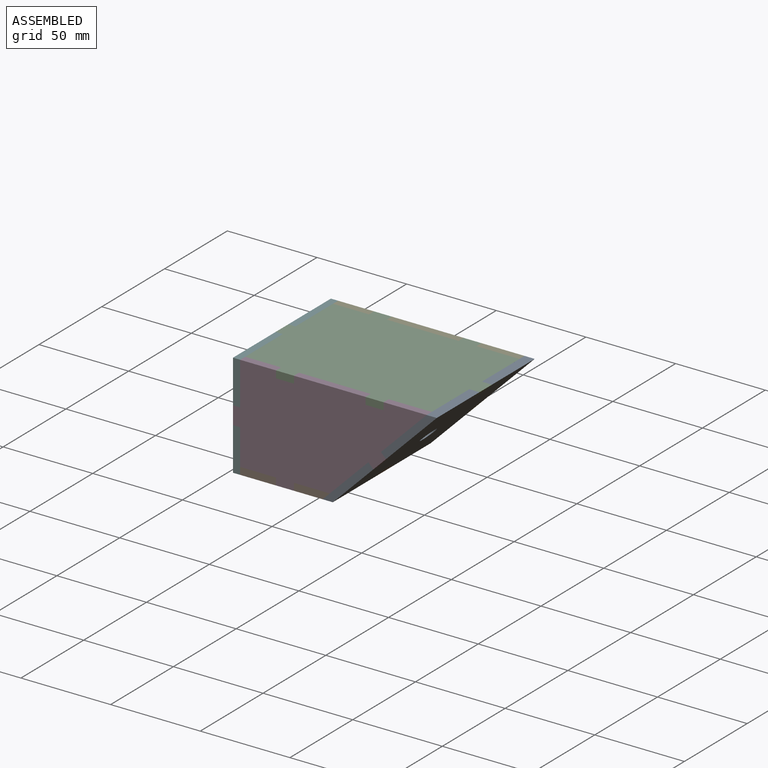
[diagram: assembled view]
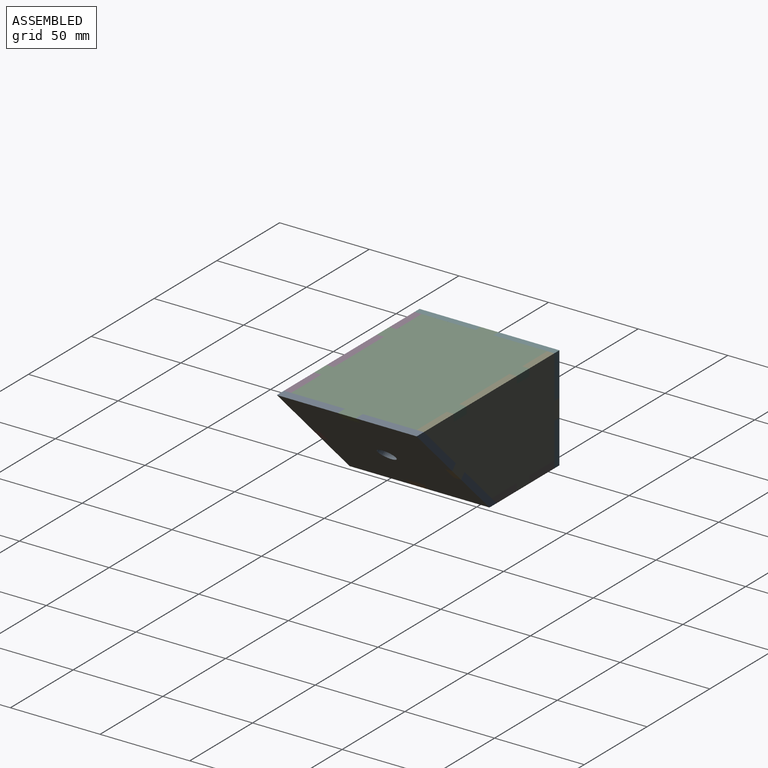
[diagram: assembled view, second angle]
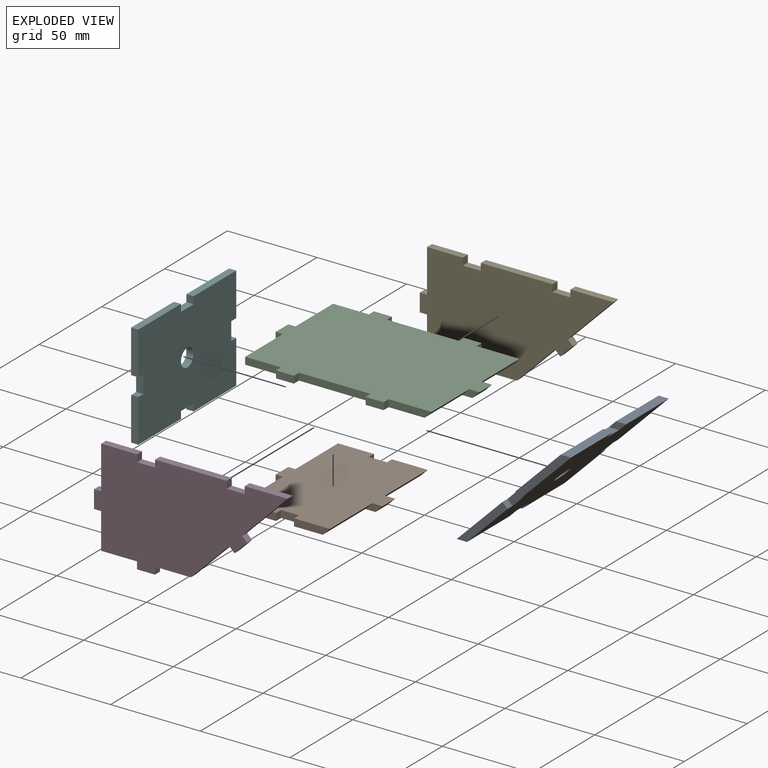
[diagram: exploded view]
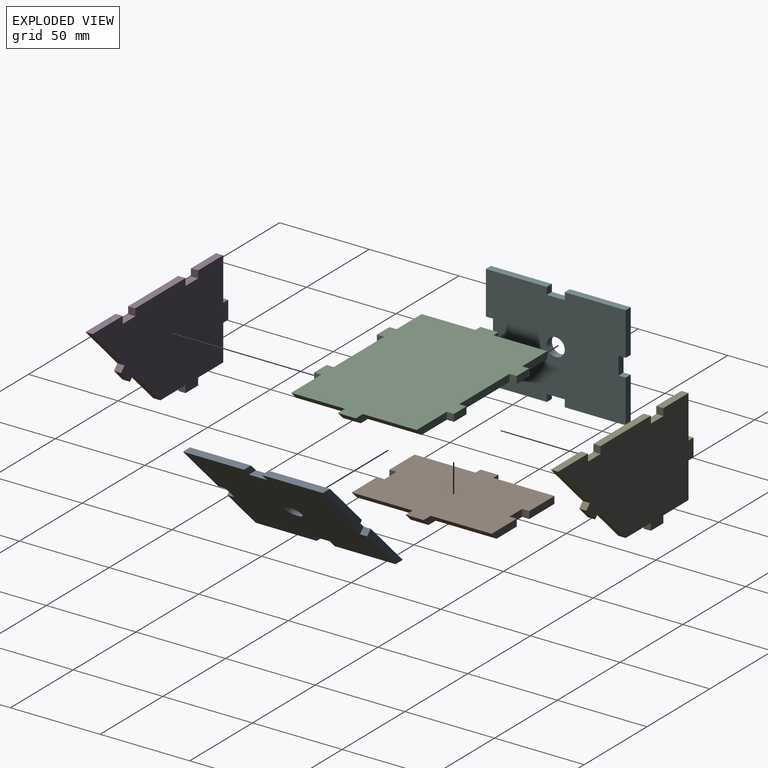
[diagram: exploded view, second angle]
ASSEMBLY  parts=6 mates=5
PART A: 23 faces, bbox 78x4x86 mm
  f0: plane 9.66x4mm, normal (-1,0,0), area 22.6mm2, adj f14,f15,f16,f17
  f1: plane 9.66x4mm, normal (1,0,0), area 22.6mm2, adj f14,f15,f17,f18
  f2: plane 36.01x4mm, normal (-1,0,0), area 136mm2, adj f3,f14,f15,f18
  f3: plane 4x4mm, normal (0,0,-1), area 16mm2, adj f2,f4,f14,f15
  f4: plane 10x4mm, normal (-1,0,0), area 40mm2, adj f3,f5,f14,f15
  f5: plane 4x4mm, normal (0,0,1), area 16mm2, adj f4,f6,f14,f15
  f6: plane 40.01x4mm, normal (-1,0,0), area 152mm2, adj f5,f14,f15,f21
  f7: plane 9.66x4mm, normal (1,0,0), area 22.6mm2, adj f14,f15,f20,f21
  f8: plane 9.66x4mm, normal (-1,0,0), area 22.6mm2, adj f14,f15,f19,f20
  f9: plane 40.01x4mm, normal (1,0,0), area 152mm2, adj f10,f14,f15,f19
  f10: plane 4x4mm, normal (0,0,1), area 16mm2, adj f9,f11,f14,f15
  f11: plane 10x4mm, normal (1,0,0), area 40mm2, adj f10,f12,f14,f15
  f12: plane 4x4mm, normal (0,0,-1), area 16mm2, adj f11,f13,f14,f15
  f13: plane 36.01x4mm, normal (1,0,0), area 136mm2, adj f12,f14,f15,f16
  f14: plane 82.02x78mm, normal (0,-1,0), area 6126.2mm2, adj f0,f1,f2,f3,f4,f5,f6,f7
  f15: plane 82.02x78mm, normal (0,1,0), area 6126.2mm2, adj f0,f1,f2,f3,f4,f5,f6,f7
  f16: plane 34x4mm, normal (0,-0.71,0.71), area 192.3mm2, adj f0,f13,f14,f15
  f17: plane 10x4mm, normal (0,-0.71,0.71), area 56.6mm2, adj f0,f1,f14,f15
  f18: plane 34x4mm, normal (0,-0.71,0.71), area 192.3mm2, adj f1,f2,f14,f15
  f19: plane 34x4mm, normal (0,0.71,-0.71), area 192.3mm2, adj f8,f9,f14,f15
  f20: plane 10x4mm, normal (0,0.71,-0.71), area 56.6mm2, adj f7,f8,f14,f15
  f21: plane 34x4mm, normal (0,0.71,-0.71), area 192.3mm2, adj f6,f7,f14,f15
  f22: cylinder r=5mm len=10mm, axis (0,1,0), area 125.7mm2, adj f14,f15
PART B: 22 faces, bbox 59.7x4x78 mm
  f0: plane 4x4mm, normal (0,0,-1), area 16mm2, adj f1,f16,f17,f18
  f1: plane 34x4mm, normal (-1,0,0), area 136mm2, adj f0,f2,f17,f18
  f2: plane 20x4mm, normal (0,0,-1), area 80mm2, adj f1,f3,f17,f18
  f3: plane 4x4mm, normal (1,0,0), area 16mm2, adj f2,f4,f17,f18
  f4: plane 10x4mm, normal (0,0,-1), area 40mm2, adj f3,f5,f17,f18
  f5: plane 4x4mm, normal (-1,0,0), area 16mm2, adj f4,f6,f17,f18
  f6: plane 20x4mm, normal (0,0,-1), area 72mm2, adj f5,f17,f18,f21
  f7: plane 9.66x4mm, normal (0,0,-1), area 22.6mm2, adj f17,f18,f19,f21
  f8: plane 9.66x4mm, normal (0,0,1), area 22.6mm2, adj f17,f18,f19,f20
  f9: plane 20x4mm, normal (0,0,1), area 72mm2, adj f10,f17,f18,f20
  f10: plane 4x4mm, normal (-1,0,0), area 16mm2, adj f9,f11,f17,f18
  f11: plane 10x4mm, normal (0,0,1), area 40mm2, adj f10,f12,f17,f18
  f12: plane 4x4mm, normal (1,0,0), area 16mm2, adj f11,f13,f17,f18
  f13: plane 20x4mm, normal (0,0,1), area 80mm2, adj f12,f14,f17,f18
  f14: plane 34x4mm, normal (-1,0,0), area 136mm2, adj f13,f15,f17,f18
  f15: plane 4x4mm, normal (0,0,1), area 16mm2, adj f14,f16,f17,f18
  f16: plane 10x4mm, normal (-1,0,0), area 40mm2, adj f0,f15,f17,f18
  f17: plane 78x59.66mm, normal (0,-1,0), area 3916.6mm2, adj f0,f1,f2,f3,f4,f5,f6,f7
  f18: plane 78x55.66mm, normal (0,1,0), area 3604.6mm2, adj f0,f1,f2,f3,f4,f5,f6,f7
  f19: plane 10x4mm, normal (0.71,0.71,0), area 56.6mm2, adj f7,f8,f17,f18
  f20: plane 34x4mm, normal (0.71,0.71,0), area 192.3mm2, adj f8,f9,f17,f18
  f21: plane 34x4mm, normal (0.71,0.71,0), area 192.3mm2, adj f6,f7,f17,f18
PART C: 30 faces, bbox 113.7x78x4 mm
  f0: plane 20x4mm, normal (0,1,0), area 80mm2, adj f1,f24,f25,f26
  f1: plane 30x4mm, normal (-1,0,0), area 120mm2, adj f0,f2,f25,f26
  f2: plane 4x4mm, normal (0,1,0), area 16mm2, adj f1,f3,f25,f26
  f3: plane 10x4mm, normal (-1,0,0), area 40mm2, adj f2,f4,f25,f26
  f4: plane 4x4mm, normal (0,-1,0), area 16mm2, adj f3,f5,f25,f26
  f5: plane 30x4mm, normal (-1,0,0), area 120mm2, adj f4,f6,f25,f26
  f6: plane 20x4mm, normal (0,-1,0), area 80mm2, adj f5,f7,f25,f26
  f7: plane 4x4mm, normal (-1,0,0), area 16mm2, adj f6,f8,f25,f26
  f8: plane 10x4mm, normal (0,-1,0), area 40mm2, adj f7,f9,f25,f26
  f9: plane 4x4mm, normal (1,0,0), area 16mm2, adj f8,f10,f25,f26
  f10: plane 40x4mm, normal (0,-1,0), area 160mm2, adj f9,f11,f25,f26
  f11: plane 4x4mm, normal (-1,0,0), area 16mm2, adj f10,f12,f25,f26
  f12: plane 10x4mm, normal (0,-1,0), area 40mm2, adj f11,f13,f25,f26
  f13: plane 4x4mm, normal (1,0,0), area 16mm2, adj f12,f14,f25,f26
  f14: plane 24x4mm, normal (0,-1,0), area 88mm2, adj f13,f25,f26,f28
  f15: plane 9.66x4mm, normal (0,-1,0), area 22.6mm2, adj f25,f26,f27,f28
  f16: plane 9.66x4mm, normal (0,1,0), area 22.6mm2, adj f25,f26,f27,f29
  f17: plane 24x4mm, normal (0,1,0), area 88mm2, adj f18,f25,f26,f29
  f18: plane 4x4mm, normal (1,0,0), area 16mm2, adj f17,f19,f25,f26
  f19: plane 10x4mm, normal (0,1,0), area 40mm2, adj f18,f20,f25,f26
  f20: plane 4x4mm, normal (-1,0,0), area 16mm2, adj f19,f21,f25,f26
  f21: plane 40x4mm, normal (0,1,0), area 160mm2, adj f20,f22,f25,f26
  f22: plane 4x4mm, normal (1,0,0), area 16mm2, adj f21,f23,f25,f26
  f23: plane 10x4mm, normal (0,1,0), area 40mm2, adj f22,f24,f25,f26
  f24: plane 4x4mm, normal (-1,0,0), area 16mm2, adj f0,f23,f25,f26
  f25: plane 113.66x78mm, normal (0,0,1), area 7536.6mm2, adj f0,f1,f2,f3,f4,f5,f6,f7
  f26: plane 109.66x78mm, normal (0,0,-1), area 7256.6mm2, adj f0,f1,f2,f3,f4,f5,f6,f7
  f27: plane 10x4mm, normal (0.71,0,-0.71), area 56.6mm2, adj f15,f16,f25,f26
  f28: plane 30x4mm, normal (0.71,0,-0.71), area 169.7mm2, adj f14,f15,f25,f26
  f29: plane 30x4mm, normal (0.71,0,-0.71), area 169.7mm2, adj f16,f17,f25,f26
PART D: 26 faces, bbox 108x4x58 mm
  f0: plane 7.07x7.07mm, normal (0.71,0,-0.71), area 40mm2, adj f1,f23,f24,f25
  f1: plane 4x2.83mm, normal (0.71,0,0.71), area 16mm2, adj f0,f2,f24,f25
  f2: plane 25.46x25.46mm, normal (0.71,0,-0.71), area 144mm2, adj f1,f3,f24,f25
  f3: plane 24x4mm, normal (0,0,1), area 96mm2, adj f2,f4,f24,f25
  f4: plane 4x4mm, normal (-1,0,0), area 16mm2, adj f3,f5,f24,f25
  f5: plane 10x4mm, normal (0,0,1), area 40mm2, adj f4,f6,f24,f25
  f6: plane 4x4mm, normal (1,0,0), area 16mm2, adj f5,f7,f24,f25
  f7: plane 40x4mm, normal (0,0,1), area 160mm2, adj f6,f8,f24,f25
  f8: plane 4x4mm, normal (-1,0,0), area 16mm2, adj f7,f9,f24,f25
  f9: plane 10x4mm, normal (0,0,1), area 40mm2, adj f8,f10,f24,f25
  f10: plane 4x4mm, normal (1,0,0), area 16mm2, adj f9,f11,f24,f25
  f11: plane 20x4mm, normal (0,0,1), area 80mm2, adj f10,f12,f24,f25
  f12: plane 24x4mm, normal (-1,0,0), area 96mm2, adj f11,f13,f24,f25
  f13: plane 4x4mm, normal (0,0,1), area 16mm2, adj f12,f14,f24,f25
  f14: plane 10x4mm, normal (-1,0,0), area 40mm2, adj f13,f15,f24,f25
  f15: plane 4x4mm, normal (0,0,-1), area 16mm2, adj f14,f16,f24,f25
  f16: plane 20x4mm, normal (-1,0,0), area 80mm2, adj f15,f17,f24,f25
  f17: plane 20x4mm, normal (0,0,-1), area 80mm2, adj f16,f18,f24,f25
  f18: plane 4x4mm, normal (-1,0,0), area 16mm2, adj f17,f19,f24,f25
  f19: plane 10x4mm, normal (0,0,-1), area 40mm2, adj f18,f20,f24,f25
  f20: plane 4x4mm, normal (1,0,0), area 16mm2, adj f19,f21,f24,f25
  f21: plane 20x4mm, normal (0,0,-1), area 80mm2, adj f20,f22,f24,f25
  f22: plane 21.46x21.46mm, normal (0.71,0,-0.71), area 121.4mm2, adj f21,f23,f24,f25
  f23: plane 4x2.83mm, normal (-0.71,0,-0.71), area 16mm2, adj f0,f22,f24,f25
  f24: plane 108x58mm, normal (0,-1,0), area 4198mm2, adj f0,f1,f2,f3,f4,f5,f6,f7
  f25: plane 108x58mm, normal (0,1,0), area 4198mm2, adj f0,f1,f2,f3,f4,f5,f6,f7
PART E: same geometry as D
PART F: 23 faces, bbox 4x78x58 mm
  f0: plane 4x4mm, normal (0,1,0), area 16mm2, adj f1,f19,f21,f22
  f1: plane 34x4mm, normal (0,0,1), area 136mm2, adj f0,f2,f21,f22
  f2: plane 24x4mm, normal (0,-1,0), area 96mm2, adj f1,f3,f21,f22
  f3: plane 4x4mm, normal (0,0,-1), area 16mm2, adj f2,f4,f21,f22
  f4: plane 10x4mm, normal (0,-1,0), area 40mm2, adj f3,f5,f21,f22
  f5: plane 4x4mm, normal (0,0,1), area 16mm2, adj f4,f6,f21,f22
  f6: plane 24x4mm, normal (0,-1,0), area 96mm2, adj f5,f7,f21,f22
  f7: plane 34x4mm, normal (0,0,-1), area 136mm2, adj f6,f8,f21,f22
  f8: plane 4x4mm, normal (0,1,0), area 16mm2, adj f7,f9,f21,f22
  f9: plane 10x4mm, normal (0,0,-1), area 40mm2, adj f8,f10,f21,f22
  f10: plane 4x4mm, normal (0,-1,0), area 16mm2, adj f9,f11,f21,f22
  f11: plane 34x4mm, normal (0,0,-1), area 136mm2, adj f10,f12,f21,f22
  f12: plane 24x4mm, normal (0,1,0), area 96mm2, adj f11,f13,f21,f22
  f13: plane 4x4mm, normal (0,0,1), area 16mm2, adj f12,f14,f21,f22
  f14: plane 10x4mm, normal (0,1,0), area 40mm2, adj f13,f15,f21,f22
  f15: plane 4x4mm, normal (0,0,-1), area 16mm2, adj f14,f16,f21,f22
  f16: plane 24x4mm, normal (0,1,0), area 96mm2, adj f15,f17,f21,f22
  f17: plane 34x4mm, normal (0,0,1), area 136mm2, adj f16,f18,f21,f22
  f18: plane 4x4mm, normal (0,-1,0), area 16mm2, adj f17,f19,f21,f22
  f19: plane 10x4mm, normal (0,0,1), area 40mm2, adj f0,f18,f21,f22
  f20: cylinder r=5mm len=10mm, axis (-1,0,0), area 125.7mm2, adj f21,f22
  f21: plane 78x58mm, normal (1,0,0), area 4285.5mm2, adj f0,f1,f2,f3,f4,f5,f6,f7
  f22: plane 78x58mm, normal (-1,0,0), area 4285.5mm2, adj f0,f1,f2,f3,f4,f5,f6,f7
PLACE A rot(axis=(0.68,-0.68,-0.28),148.6deg) t=(55.87,-9.06,4.71)mm
PLACE B rot(axis=(-1,0,0),90deg) t=(5.87,-9.06,-24.29)mm
PLACE C t=(30.87,-9.06,29.71)mm
PLACE D t=(80.87,-44.06,-3.93)mm
PLACE E t=(80.87,29.94,-3.93)mm
PLACE F t=(-23.13,-9.06,4.71)mm fixed
MATE planar A.f10 <-> D.f1  axis (-0.71,0,-0.71) through (60.82,-46.06,6.83)mm
MATE planar B.f0 <-> F.f8  axis (0,-1,0) through (-21.13,-14.06,-22.29)mm
MATE planar C.f4 <-> F.f0  axis (0,-1,0) through (-21.13,-14.06,31.71)mm
MATE planar D.f15 <-> F.f5  axis (0,0,-1) through (-21.13,-46.06,-0.29)mm
MATE planar E.f13 <-> F.f15  axis (0,0,1) through (-21.13,27.94,9.71)mm
